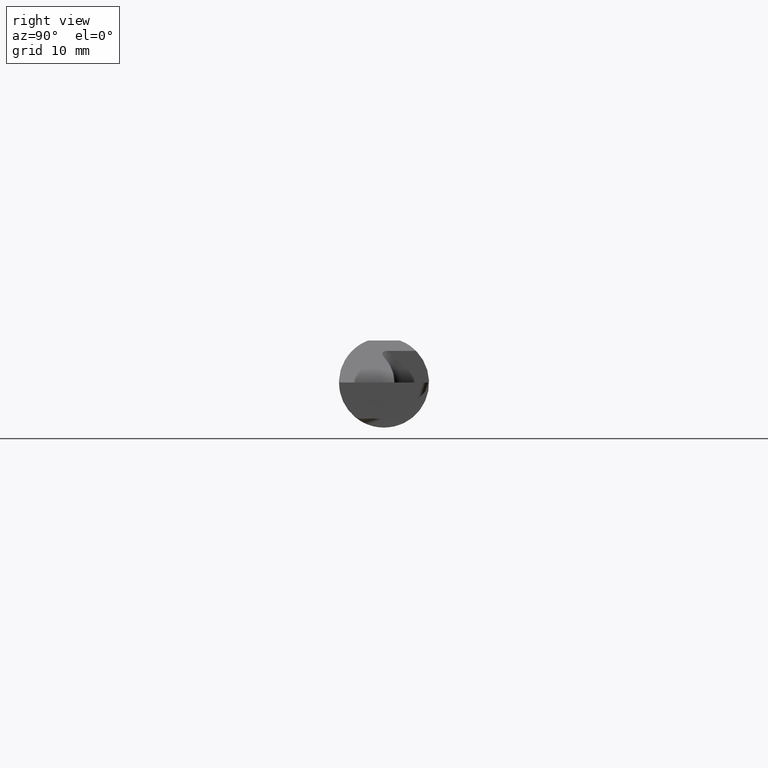
[diagram: clean part render]
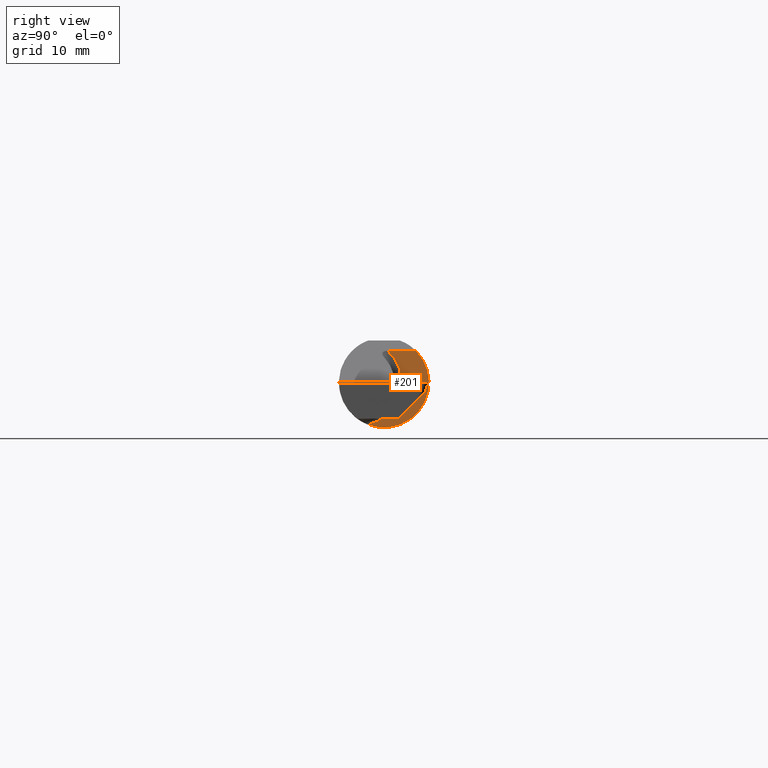
[diagram: same view with one face highlighted and labeled with its STEP entity id]
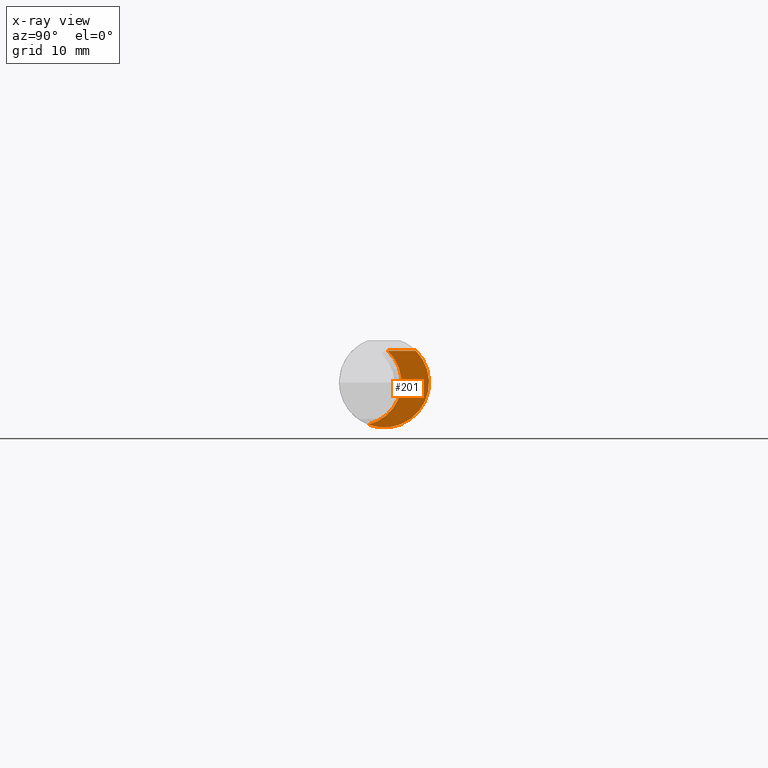
[diagram: x-ray of the same camera — body ghosted, the highlighted face saturated]
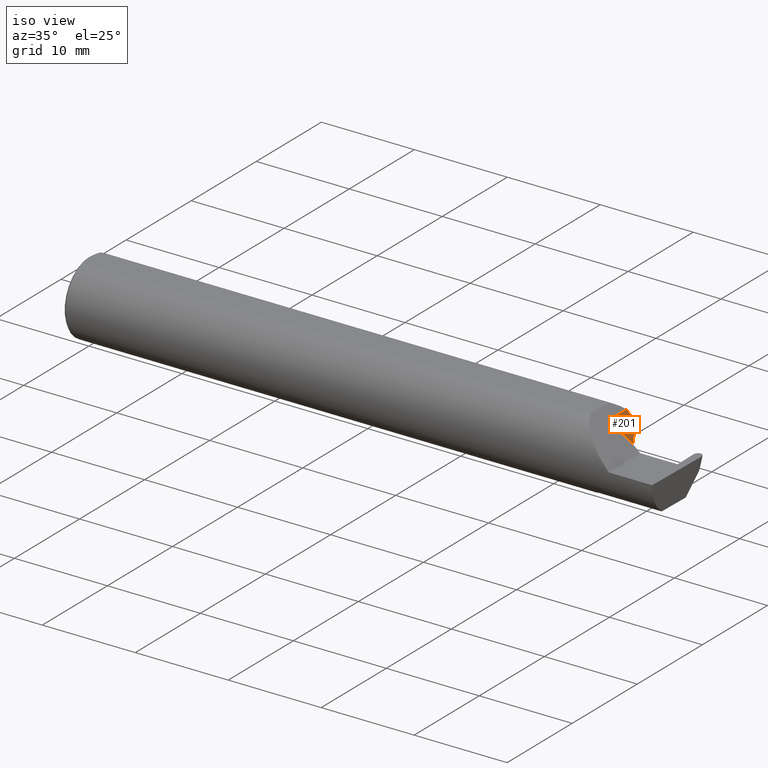
[diagram: same view with one face highlighted and labeled with its STEP entity id]
A machine part, right view. The second image highlights one B-rep face of the part: STEP entity #201.
The next image is the same camera in x-ray: the body ghosted, the highlighted face saturated — about 0% of this face is hidden behind the body in this view.
A second angle (iso view) of the same face is appended — the face is thin or edge-on in the first view.
In plain terms, the highlighted planar face has unit normal (1, 0, 0).
Its self-contained STEP definition (entity closure, byte-faithful):
#51 = CARTESIAN_POINT ( 'NONE',  ( 2.200000000000000178, -0.08910000000000006803, 0.000000000000000000 ) ) ;
#87 = CARTESIAN_POINT ( 'NONE',  ( 2.200000000000000178, 0.1560999999999999888, 0.000000000000000000 ) ) ;
#111 = EDGE_LOOP ( 'NONE', ( #133, #331, #311 ) ) ;
#133 = ORIENTED_EDGE ( 'NONE', *, *, #151, .T. ) ;
#151 = EDGE_CURVE ( 'NONE', #181, #574, #572, .T. ) ;
#181 = VERTEX_POINT ( 'NONE', #628 ) ;
#201 = ADVANCED_FACE ( 'NONE', ( #561 ), #252, .T. ) ;
#248 = CARTESIAN_POINT ( 'NONE',  ( 2.200000000000000178, 0.000000000000000000, 0.000000000000000000 ) ) ;
#252 = PLANE ( 'NONE',  #384 ) ;
#263 = DIRECTION ( 'NONE',  ( -1.000000000000000000, -1.922274392784743754E-16, -0.000000000000000000 ) ) ;
#276 = EDGE_CURVE ( 'NONE', #470, #181, #509, .T. ) ;
#301 = DIRECTION ( 'NONE',  ( -1.922274392784743754E-16, 1.000000000000000000, 0.000000000000000000 ) ) ;
#305 = DIRECTION ( 'NONE',  ( 1.000000000000000000, 1.922274392784743754E-16, 0.000000000000000000 ) ) ;
#311 = ORIENTED_EDGE ( 'NONE', *, *, #276, .T. ) ;
#331 = ORIENTED_EDGE ( 'NONE', *, *, #585, .T. ) ;
#375 = CARTESIAN_POINT ( 'NONE',  ( 2.200000000000000178, 0.01288039027185680294, 0.1099999999999990014 ) ) ;
#384 = AXIS2_PLACEMENT_3D ( 'NONE', #87, #507, #301 ) ;
#386 = DIRECTION ( 'NONE',  ( 1.922274392784743754E-16, -1.000000000000000000, -1.922274392784723293E-16 ) ) ;
#456 = LINE ( 'NONE', #493, #678 ) ;
#470 = VERTEX_POINT ( 'NONE', #375 ) ;
#491 = CARTESIAN_POINT ( 'NONE',  ( 2.200000000000000178, 0.1107574376735043775, 0.1099999999999990152 ) ) ;
#493 = CARTESIAN_POINT ( 'NONE',  ( 2.200000000000000178, -0.2500000000000000555, 0.1099999999999989458 ) ) ;
#503 = DIRECTION ( 'NONE',  ( 0.000000000000000000, 1.000000000000000000, 0.000000000000000000 ) ) ;
#507 = DIRECTION ( 'NONE',  ( 1.000000000000000000, 1.922274392784743754E-16, 0.000000000000000000 ) ) ;
#509 = CIRCLE ( 'NONE', #613, 0.1500000000000000500 ) ;
#561 = FACE_OUTER_BOUND ( 'NONE', #111, .T. ) ;
#572 = CIRCLE ( 'NONE', #632, 0.1560999999999999888 ) ;
#574 = VERTEX_POINT ( 'NONE', #491 ) ;
#585 = EDGE_CURVE ( 'NONE', #574, #470, #456, .T. ) ;
#613 = AXIS2_PLACEMENT_3D ( 'NONE', #51, #263, #694 ) ;
#628 = CARTESIAN_POINT ( 'NONE',  ( 2.200000000000000178, -0.05502817059483715301, -0.1460791239054557433 ) ) ;
#632 = AXIS2_PLACEMENT_3D ( 'NONE', #248, #305, #503 ) ;
#678 = VECTOR ( 'NONE', #386, 39.37007874015748143 ) ;
#694 = DIRECTION ( 'NONE',  ( 0.000000000000000000, -1.000000000000000000, 0.000000000000000000 ) ) ;